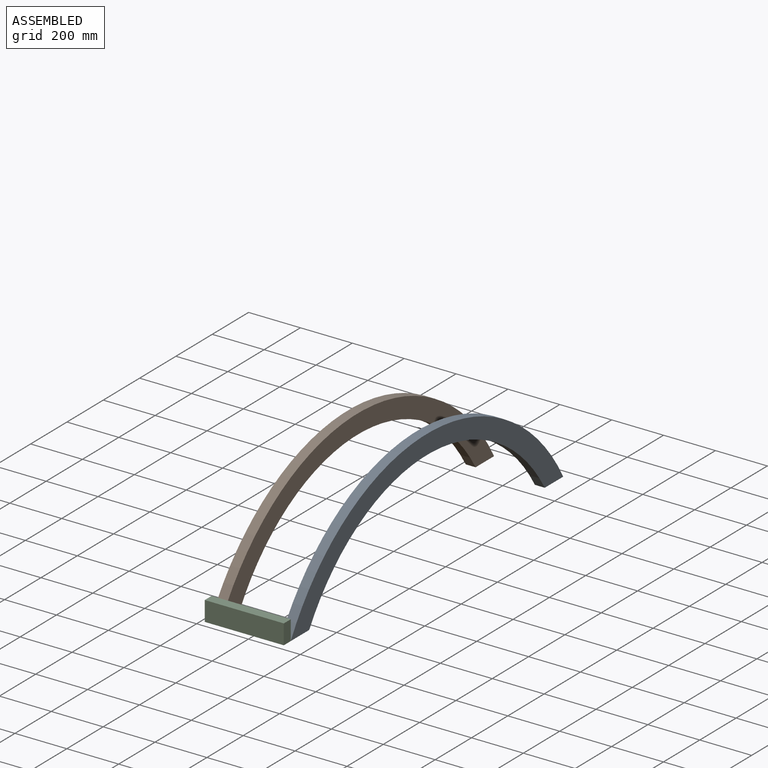
[diagram: assembled view]
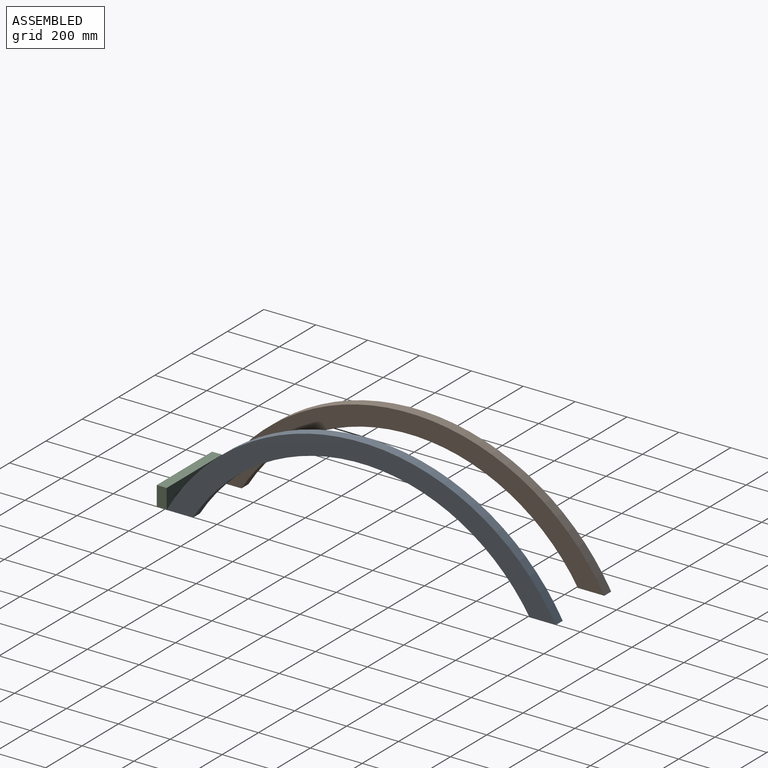
[diagram: assembled view, second angle]
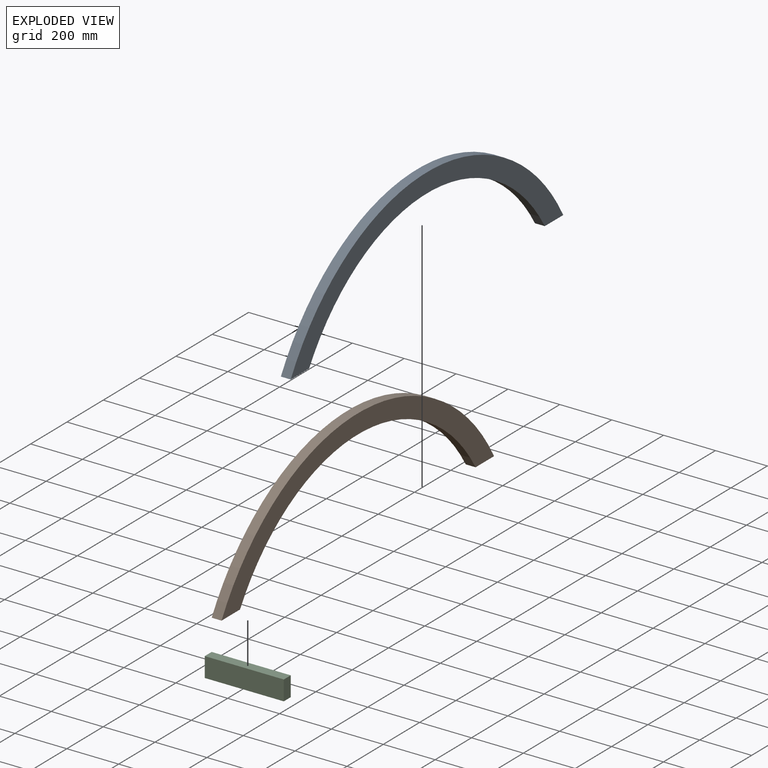
[diagram: exploded view]
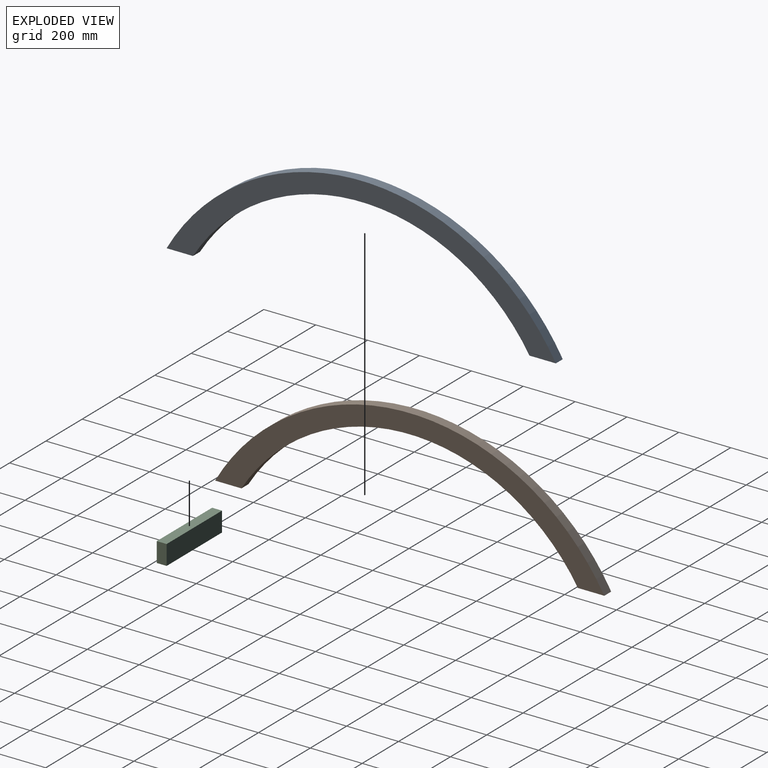
[diagram: exploded view, second angle]
ASSEMBLY  parts=3 mates=2
PART A: 6 faces, bbox 38.1x1500.6x436 mm
  f0: plane 101.6x38.1mm, normal (0,0,-1), area 3871mm2, adj f1,f3,f4,f5
  f1: cylinder r=863.6mm len=1500.59mm, axis (-1,0,0), area 69279.2mm2, adj f0,f2,f4,f5
  f2: plane 101.6x38.1mm, normal (0,0,-1), area 3871mm2, adj f1,f3,f4,f5
  f3: cylinder r=762mm len=1297.39mm, axis (-1,0,0), area 59136.9mm2, adj f0,f2,f4,f5
  f4: plane 1500.59x435.98mm, normal (1,0,0), area 132298.2mm2, adj f0,f1,f2,f3
  f5: plane 1500.59x435.98mm, normal (-1,0,0), area 132298.2mm2, adj f0,f1,f2,f3
PART B: same geometry as A
PART C: 6 faces, bbox 304.8x38.1x76.2 mm
  f0: plane 304.8x38.1mm, normal (0,0,-1), area 11612.9mm2, adj f1,f3,f4,f5
  f1: plane 76.2x38.1mm, normal (1,0,0), area 2903.2mm2, adj f0,f2,f4,f5
  f2: plane 304.8x38.1mm, normal (0,0,1), area 11612.9mm2, adj f1,f3,f4,f5
  f3: plane 76.2x38.1mm, normal (-1,0,0), area 2903.2mm2, adj f0,f2,f4,f5
  f4: plane 304.8x76.2mm, normal (0,-1,0), area 23225.8mm2, adj f0,f1,f2,f3
  f5: plane 304.8x76.2mm, normal (0,1,0), area 23225.8mm2, adj f0,f1,f2,f3
PLACE A t=(550.48,0,-9.76)mm
PLACE B t=(283.78,0,-9.76)mm
PLACE C t=(215.62,-721.97,-9.76)mm
MATE fastened C.f0 <-> B.f2  axis (0,0,1) through (283.78,-721.97,-9.76)mm
MATE fastened C.f0 <-> A.f2  axis (0,0,1) through (588.58,-721.97,-9.76)mm
